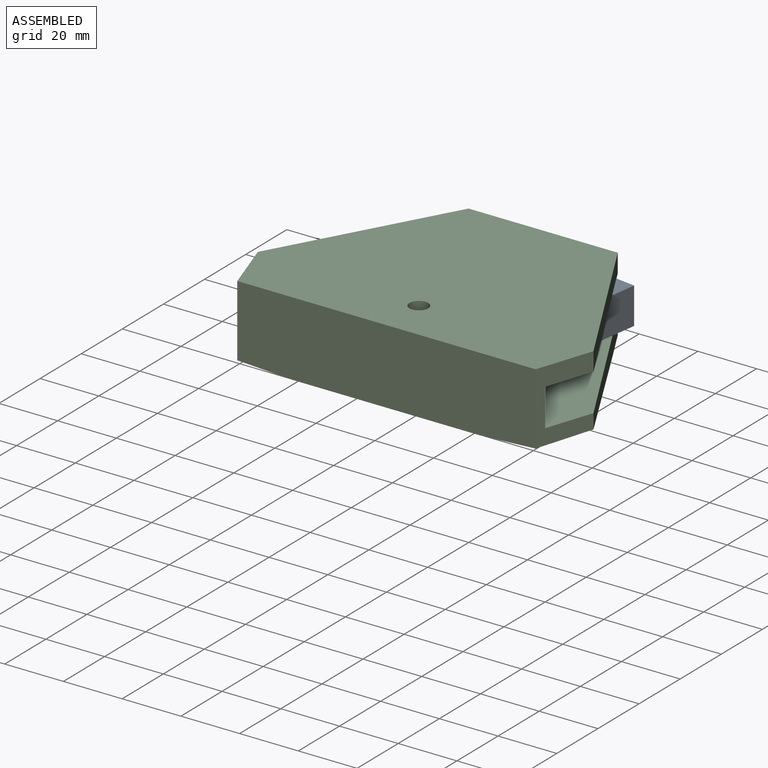
[diagram: assembled view]
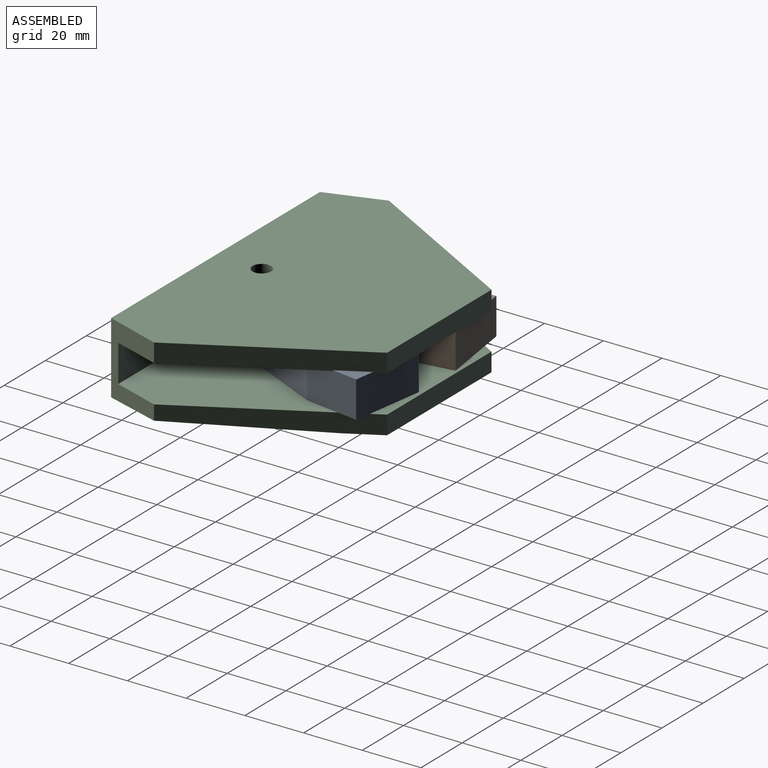
[diagram: assembled view, second angle]
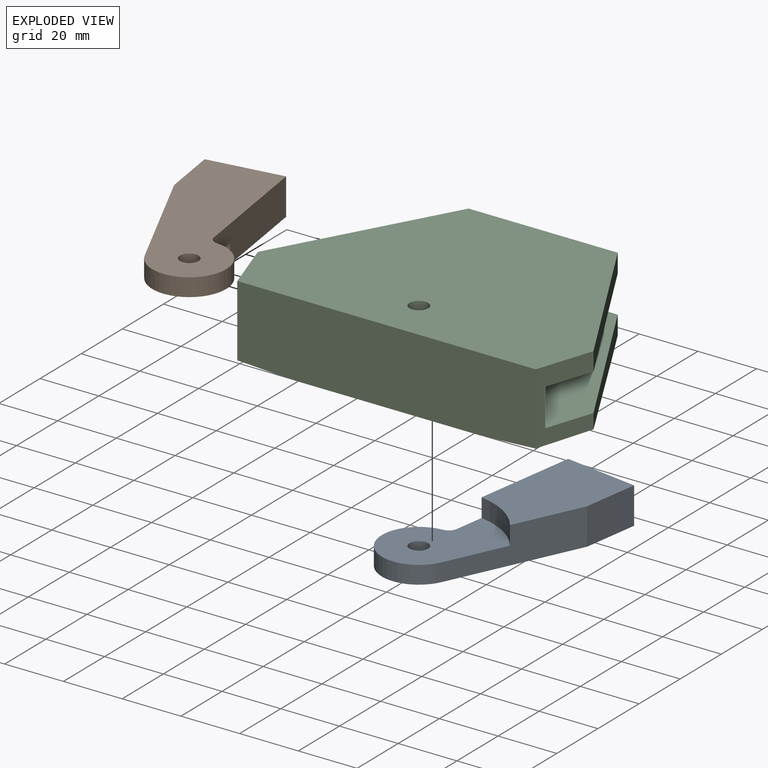
[diagram: exploded view]
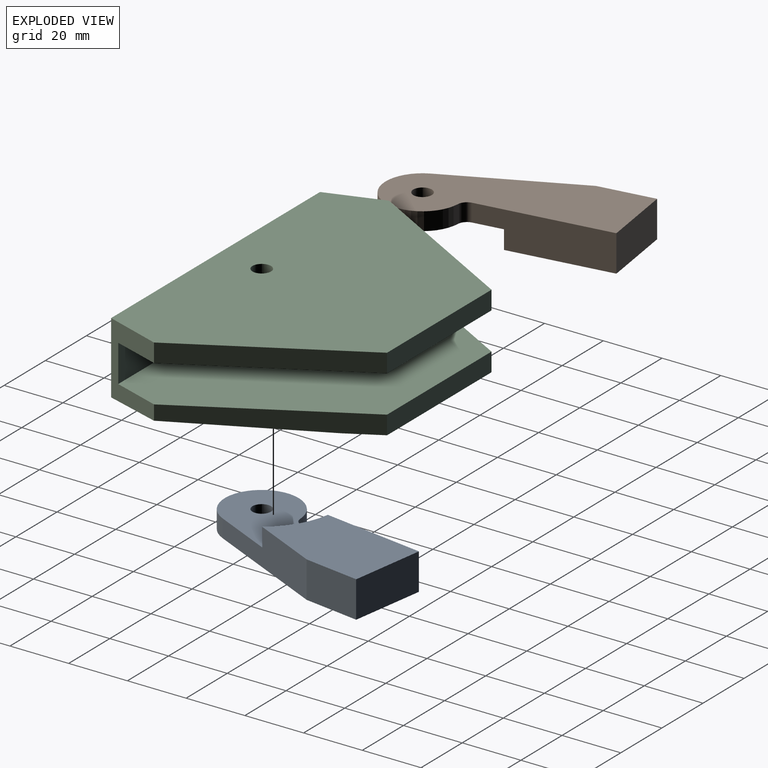
[diagram: exploded view, second angle]
ASSEMBLY  parts=3 mates=2
PART A: 11 faces, bbox 38x73x12.4 mm
  f0: cylinder r=3.17mm len=6.1mm, axis (0,0,-1), area 26.5mm2, adj f1,f6,f8,f9
  f1: cylinder r=12.57mm len=24.89mm, axis (0,0,-1), area 323.5mm2, adj f0,f3,f8,f9
  f2: cylinder r=3.17mm len=6.35mm, axis (0,0,-1), area 121.6mm2, adj f8,f9
  f3: plane 44.98x13.35mm, normal (0.96,-0.28,0), area 443.8mm2, adj f1,f4,f7,f8,f9,f10
  f4: plane 19.05x12.45mm, normal (1,0,0), area 237.1mm2, adj f3,f5,f7,f8
  f5: plane 25.4x12.45mm, normal (0,1,0), area 316.1mm2, adj f4,f6,f7,f8
  f6: plane 45.03x12.45mm, normal (-1,0,0), area 497.1mm2, adj f0,f5,f7,f8,f9,f10
  f7: plane 42.87x25.4mm, normal (0,0,1), area 905.8mm2, adj f3,f4,f5,f6,f10
  f8: plane 73.03x37.97mm, normal (0,0,-1), area 1624.2mm2, adj f0,f1,f2,f3,f4,f5,f6
  f9: plane 37.97x30.9mm, normal (0,0,1), area 718.4mm2, adj f0,f1,f2,f3,f6,f10
  f10: cylinder r=25.4mm len=18.33mm, axis (0,0,1), area 130mm2, adj f3,f6,f7,f9
PART B: same geometry as A
PART C: 18 faces, bbox 114.3x76.2x25.4 mm
  f0: plane 57.15x31.75mm, normal (-0.87,0.49,0), area 415.1mm2, adj f6,f9,f10,f14
  f1: plane 57.15x31.75mm, normal (0.87,0.49,0), area 380.3mm2, adj f2,f3,f7,f12,f15
  f2: plane 50.8x6.35mm, normal (0,1,0), area 322.6mm2, adj f1,f5,f7,f15
  f3: plane 24.4x19.05mm, normal (0.95,-0.32,0), area 274.1mm2, adj f1,f4,f8,f10,f12,f13,f14,f15
  f4: plane 101.6x25.4mm, normal (0,-1,0), area 2561.6mm2, adj f3,f6,f7,f10,f11,f12
  f5: plane 57.15x31.75mm, normal (-0.87,0.49,0), area 380.3mm2, adj f2,f6,f7,f11,f15
  f6: plane 24.4x19.05mm, normal (-0.95,-0.32,0), area 274.1mm2, adj f0,f4,f5,f10,f11,f13,f14,f15
  f7: plane 76.2x63.5mm, normal (0,0,-1), area 4734.5mm2, adj f1,f2,f4,f5,f11,f12,f16
  f8: plane 57.15x31.75mm, normal (0.87,0.49,0), area 415.1mm2, adj f3,f9,f10,f14
  f9: plane 50.8x6.35mm, normal (0,1,0), area 322.6mm2, adj f0,f8,f10,f14
  f10: plane 114.3x76.2mm, normal (0,0,1), area 6742.5mm2, adj f0,f3,f4,f6,f8,f9,f17
  f11: plane 64.77x25.4mm, normal (-0.05,0,-1), area 1005.4mm2, adj f4,f5,f6,f7
  f12: plane 64.77x25.4mm, normal (0.05,0,-1), area 1005.4mm2, adj f1,f3,f4,f7
  f13: plane 103.72x12.7mm, normal (0,1,0), area 1317.2mm2, adj f3,f6,f14,f15
  f14: plane 114.3x73.03mm, normal (0,0,-1), area 6416.6mm2, adj f0,f3,f6,f8,f9,f13,f17
  f15: plane 114.3x73.03mm, normal (0,0,1), area 6416.6mm2, adj f1,f2,f3,f5,f6,f13,f16
  f16: cylinder r=3.17mm len=6.35mm, axis (0,0,1), area 126.7mm2, adj f7,f15
  f17: cylinder r=3.17mm len=6.35mm, axis (0,0,1), area 126.7mm2, adj f10,f14
PLACE A rot(axis=(0,0,-1),8.5deg) t=(-2.33,0.17,6.86)mm
PLACE B rot(axis=(0.07,-1,0),180deg) t=(2.31,0.17,19.05)mm
PLACE C at identity fixed
MATE revolute A.f2 <-> B.f1  axis (0,0,1) through (0,15.75,12.95)mm
MATE revolute C.f16 <-> B.f2  axis (0,0,-1) through (0,15.75,19.05)mm
